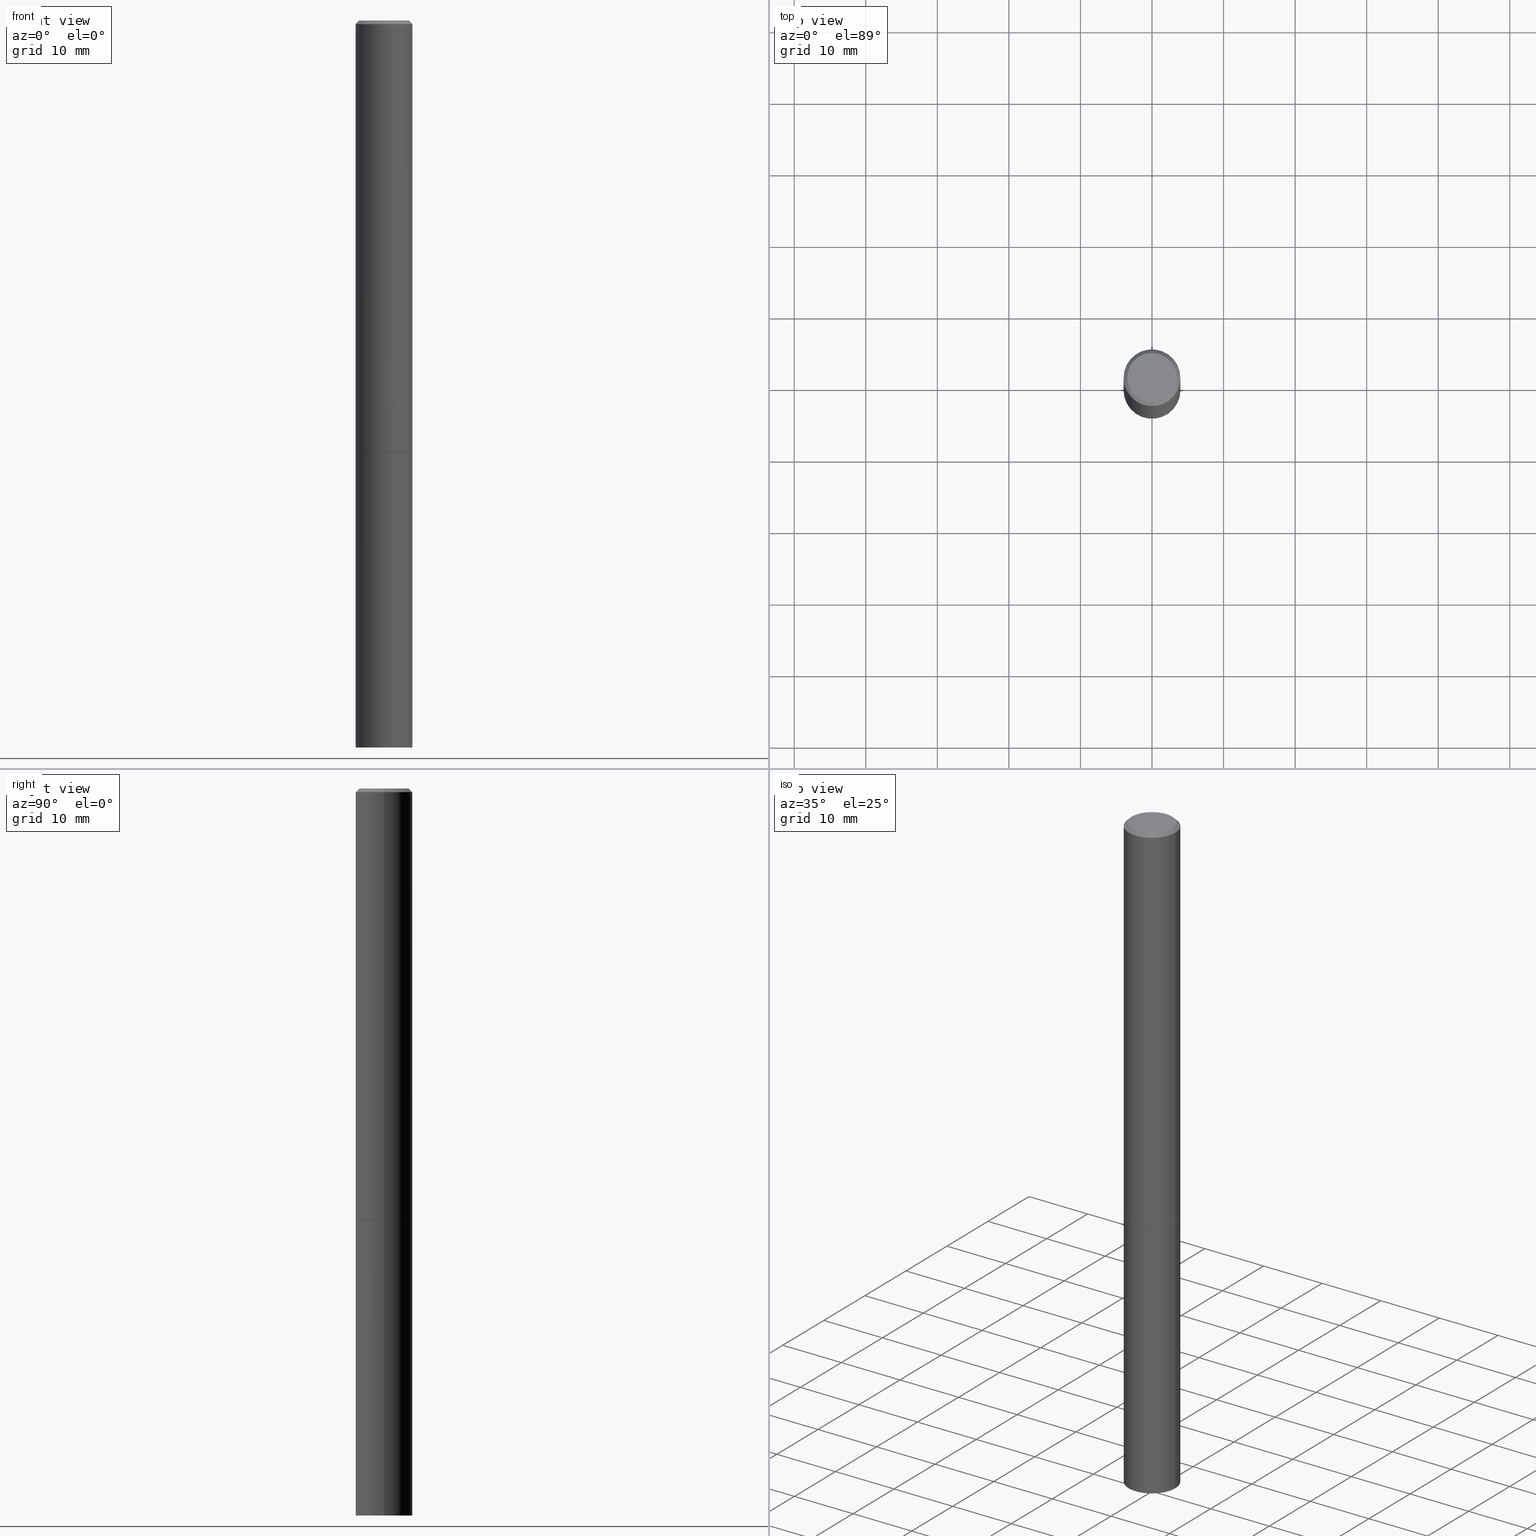
[diagram: canonical four-view strip — front | top / right | iso, engineering-drawing reading convention]
A machine part, canonical four-view strip (front | top / right | iso — engineering-drawing reading convention). The complete STEP part file that produces these views, byte-faithful:
ISO-10303-21;
HEADER;
FILE_DESCRIPTION (( 'STEP AP203' ),
    '1' );
FILE_NAME ('31951.STEP',
    '2024-02-27T14:20:24',
    ( '' ),
    ( '' ),
    'SwSTEP 2.0',
    'SolidWorks 2023',
    '' );
FILE_SCHEMA (( 'CONFIG_CONTROL_DESIGN' ));
ENDSEC;

DATA;
#1 = ORIENTED_EDGE ( 'NONE', *, *, #15, .T. ) ;
#2 = AXIS2_PLACEMENT_3D ( 'NONE', #83, #290, #30 ) ;
#3 = DIRECTION ( 'NONE',  ( -2.445468806185136597E-29, 3.491481338843145583E-15, 1.000000000000000000 ) ) ;
#4 = PRODUCT_DEFINITION_SHAPE ( 'NONE', 'NONE',  #153 ) ;
#5 = DIRECTION ( 'NONE',  ( -2.445468806185136877E-29, 3.491481338843145188E-15, 1.000000000000000000 ) ) ;
#6 = ORIENTED_EDGE ( 'NONE', *, *, #266, .F. ) ;
#7 =( LENGTH_UNIT ( ) NAMED_UNIT ( * ) SI_UNIT ( $, .METRE. ) );
#8 = VECTOR ( 'NONE', #287, 39.37007874015748854 ) ;
#9 = LINE ( 'NONE', #258, #233 ) ;
#10 = ADVANCED_FACE ( 'NONE', ( #84 ), #284, .T. ) ;
#11 = CARTESIAN_POINT ( 'NONE',  ( 9.781875224740546387E-29, -1.396592535537258233E-14, -4.000000000000000000 ) ) ;
#12 = VECTOR ( 'NONE', #268, 39.37007874015748143 ) ;
#13 = FACE_OUTER_BOUND ( 'NONE', #143, .T. ) ;
#14 = SECURITY_CLASSIFICATION ( '', '', #21 ) ;
#15 = EDGE_CURVE ( 'NONE', #195, #79, #173, .T. ) ;
#16 = CARTESIAN_POINT ( 'NONE',  ( 1.091087918388537155E-15, 0.1562499999999917011, -2.375000000000000444 ) ) ;
#17 = DIRECTION ( 'NONE',  ( 1.000000000000000000, -6.982962677686265922E-15, 4.876176775795935793E-29 ) ) ;
#18 = CARTESIAN_POINT ( 'NONE',  ( 0.000000000000000000, 0.000000000000000000, 0.000000000000000000 ) ) ;
#19 = CIRCLE ( 'NONE', #349, 0.1362499999999997324 ) ;
#20 = PERSON_AND_ORGANIZATION ( #115, #189 ) ;
#21 = SECURITY_CLASSIFICATION_LEVEL ( 'unclassified' ) ;
#22 = DIRECTION ( 'NONE',  ( 1.000000000000000000, -6.982962677686262766E-15, 0.000000000000000000 ) ) ;
#23 = ORIENTED_EDGE ( 'NONE', *, *, #207, .T. ) ;
#24 = CALENDAR_DATE ( 2024, 27, 2 ) ;
#25 = CARTESIAN_POINT ( 'NONE',  ( 4.890937612370281041E-31, -6.982962677686302702E-17, -0.02000000000000003511 ) ) ;
#26 = CIRCLE ( 'NONE', #172, 0.1562499999999997224 ) ;
#27 = FACE_OUTER_BOUND ( 'NONE', #81, .T. ) ;
#28 = PERSON_AND_ORGANIZATION ( #115, #189 ) ;
#29 = ORIENTED_EDGE ( 'NONE', *, *, #283, .F. ) ;
#30 = DIRECTION ( 'NONE',  ( 1.000000000000000000, 0.000000000000000000, 0.000000000000000000 ) ) ;
#31 = PRODUCT_RELATED_PRODUCT_CATEGORY ( 'detail', '', ( #338 ) ) ;
#32 = EDGE_LOOP ( 'NONE', ( #33, #1, #168, #365 ) ) ;
#33 = ORIENTED_EDGE ( 'NONE', *, *, #136, .F. ) ;
#34 = VECTOR ( 'NONE', #187, 39.37007874015748854 ) ;
#35 = DIRECTION ( 'NONE',  ( -2.445468806185136597E-29, 3.491481338843145583E-15, 1.000000000000000000 ) ) ;
#36 = ORIENTED_EDGE ( 'NONE', *, *, #131, .T. ) ;
#37 = EDGE_CURVE ( 'NONE', #230, #332, #26, .T. ) ;
#38 = CARTESIAN_POINT ( 'NONE',  ( -0.1552499999999999991, -7.183852128136692972E-15, -2.375000000000000000 ) ) ;
#39 = VERTEX_POINT ( 'NONE', #362 ) ;
#40 = CC_DESIGN_PERSON_AND_ORGANIZATION_ASSIGNMENT ( #245, #104, ( #14 ) ) ;
#41 = CYLINDRICAL_SURFACE ( 'NONE', #97, 0.1562499999999998612 ) ;
#42 = AXIS2_PLACEMENT_3D ( 'NONE', #309, #232, #231 ) ;
#43 = ADVANCED_FACE ( 'NONE', ( #27 ), #252, .F. ) ;
#44 = EDGE_CURVE ( 'NONE', #174, #195, #292, .T. ) ;
#45 = AXIS2_PLACEMENT_3D ( 'NONE', #46, #130, #98 ) ;
#46 = CARTESIAN_POINT ( 'NONE',  ( 4.890937612370281041E-31, -6.982962677686302702E-17, -0.02000000000000003511 ) ) ;
#47 = APPROVAL_DATE_TIME ( #239, #272 ) ;
#48 = CONICAL_SURFACE ( 'NONE', #317, 0.1562499999999997224, 0.7853981633974472798 ) ;
#49 = DATE_AND_TIME ( #66, #91 ) ;
#50 = ORIENTED_EDGE ( 'NONE', *, *, #37, .F. ) ;
#51 = EDGE_CURVE ( 'NONE', #54, #312, #293, .T. ) ;
#52 = CYLINDRICAL_SURFACE ( 'NONE', #249, 0.1562499999999998612 ) ;
#53 = AXIS2_PLACEMENT_3D ( 'NONE', #134, #3, #86 ) ;
#54 = VERTEX_POINT ( 'NONE', #209 ) ;
#55 = AXIS2_PLACEMENT_3D ( 'NONE', #122, #320, #353 ) ;
#56 = EDGE_LOOP ( 'NONE', ( #253, #257 ) ) ;
#57 = PERSON_AND_ORGANIZATION ( #115, #189 ) ;
#58 = ORIENTED_EDGE ( 'NONE', *, *, #236, .F. ) ;
#59 = DIRECTION ( 'NONE',  ( 1.000000000000000000, -6.982962677686268288E-15, 0.000000000000000000 ) ) ;
#60 = ORIENTED_EDGE ( 'NONE', *, *, #142, .F. ) ;
#61 = AXIS2_PLACEMENT_3D ( 'NONE', #250, #361, #111 ) ;
#62 = LOCAL_TIME ( 9, 20, 24.00000000000000000, #190 ) ;
#63 =( NAMED_UNIT ( * ) PLANE_ANGLE_UNIT ( ) SI_UNIT ( $, .RADIAN. ) );
#64 = FACE_OUTER_BOUND ( 'NONE', #56, .T. ) ;
#65 = PERSON_AND_ORGANIZATION ( #115, #189 ) ;
#66 = CALENDAR_DATE ( 2024, 27, 2 ) ;
#67 = DESIGN_CONTEXT ( 'detailed design', #127, 'design' ) ;
#68 = CARTESIAN_POINT ( 'NONE',  ( -0.1562499999999998612, 1.110223024625155554E-15, -7.685836078523284153E-30 ) ) ;
#69 = AXIS2_PLACEMENT_3D ( 'NONE', #11, #238, #210 ) ;
#70 = LOCAL_TIME ( 9, 20, 24.00000000000000000, #323 ) ;
#71 = APPROVAL_STATUS ( 'not_yet_approved' ) ;
#72 = DIRECTION ( 'NONE',  ( -2.445468806185136597E-29, 3.491481338843145583E-15, 1.000000000000000000 ) ) ;
#73 = DATE_AND_TIME ( #355, #70 ) ;
#74 = LOCAL_TIME ( 9, 20, 24.00000000000000000, #217 ) ;
#75 = PERSON_AND_ORGANIZATION ( #115, #189 ) ;
#76 = ADVANCED_FACE ( 'NONE', ( #184 ), #270, .T. ) ;
#77 = DIRECTION ( 'NONE',  ( -2.445468806185136597E-29, 3.491481338843145583E-15, 1.000000000000000000 ) ) ;
#78 = DIRECTION ( 'NONE',  ( -2.445468806185136877E-29, 3.491481338843145188E-15, 1.000000000000000000 ) ) ;
#79 = VERTEX_POINT ( 'NONE', #128 ) ;
#80 = DIRECTION ( 'NONE',  ( 1.000000000000000000, -6.982962677686266711E-15, 4.876176775795936353E-29 ) ) ;
#81 = EDGE_LOOP ( 'NONE', ( #304, #170 ) ) ;
#82 = VECTOR ( 'NONE', #78, 39.37007874015748143 ) ;
#83 = CARTESIAN_POINT ( 'NONE',  ( 0.000000000000000000, 0.000000000000000000, 0.000000000000000000 ) ) ;
#84 = FACE_OUTER_BOUND ( 'NONE', #117, .T. ) ;
#85 = DIRECTION ( 'NONE',  ( 1.000000000000000000, -6.982962677686262766E-15, 0.000000000000000000 ) ) ;
#86 = DIRECTION ( 'NONE',  ( 1.000000000000000000, -6.982962677686266711E-15, 4.876176775795936353E-29 ) ) ;
#87 = CYLINDRICAL_SURFACE ( 'NONE', #347, 0.1562500000000000000 ) ;
#88 = DIRECTION ( 'NONE',  ( -1.000000000000000000, 6.982962677686265922E-15, -4.876176775795935793E-29 ) ) ;
#89 = CARTESIAN_POINT ( 'NONE',  ( 5.805542945883513814E-29, -8.288776698413627111E-15, -2.373999999999999666 ) ) ;
#90 = UNCERTAINTY_MEASURE_WITH_UNIT (LENGTH_MEASURE( 1.000000000000000082E-05 ), #126, 'distance_accuracy_value', 'NONE');
#91 = LOCAL_TIME ( 9, 20, 24.00000000000000000, #271 ) ;
#92 = DIRECTION ( 'NONE',  ( 2.438088387897960049E-29, -3.491481338843145188E-15, -1.000000000000000000 ) ) ;
#93 = CARTESIAN_POINT ( 'NONE',  ( 0.1562500000000000000, -1.091087918388479174E-15, 7.619026212181150377E-30 ) ) ;
#94 = ADVANCED_FACE ( 'NONE', ( #64 ), #212, .F. ) ;
#95 = DIRECTION ( 'NONE',  ( -2.445468806185136877E-29, 3.491481338843145188E-15, 1.000000000000000000 ) ) ;
#96 = CIRCLE ( 'NONE', #307, 0.1552499999999999991 ) ;
#97 = AXIS2_PLACEMENT_3D ( 'NONE', #229, #339, #288 ) ;
#98 = DIRECTION ( 'NONE',  ( 1.000000000000000000, -6.982962677686267499E-15, 0.000000000000000000 ) ) ;
#99 = ADVANCED_FACE ( 'NONE', ( #13 ), #198, .T. ) ;
#100 = CARTESIAN_POINT ( 'NONE',  ( 0.1552499999999999991, -9.376373135463264066E-15, -2.375000000000000000 ) ) ;
#101 = APPROVAL ( #71, 'UNSPECIFIED' ) ;
#102 = PERSON_AND_ORGANIZATION_ROLE ( 'creator' ) ;
#103 = CARTESIAN_POINT ( 'NONE',  ( -0.1362499999999997324, 9.863434782231830429E-16, -6.775751096333125871E-30 ) ) ;
#104 = PERSON_AND_ORGANIZATION_ROLE ( 'classification_officer' ) ;
#105 = LINE ( 'NONE', #242, #335 ) ;
#106 = AXIS2_PLACEMENT_3D ( 'NONE', #295, #72, #350 ) ;
#107 = CIRCLE ( 'NONE', #45, 0.1562499999999997224 ) ;
#108 = DIRECTION ( 'NONE',  ( -2.445468806185136597E-29, 3.491481338843145583E-15, 1.000000000000000000 ) ) ;
#109 = PERSON_AND_ORGANIZATION ( #115, #189 ) ;
#110 = MANIFOLD_SOLID_BREP ( 'Body-Move/Copy2[2]', #346 ) ;
#111 = DIRECTION ( 'NONE',  ( -1.000000000000000000, 6.982962677686267499E-15, 0.000000000000000000 ) ) ;
#112 = ORIENTED_EDGE ( 'NONE', *, *, #51, .T. ) ;
#113 = ORIENTED_EDGE ( 'NONE', *, *, #315, .T. ) ;
#114 = DIRECTION ( 'NONE',  ( -2.445468806185136597E-29, 3.491481338843145583E-15, 1.000000000000000000 ) ) ;
#115 = PERSON ( 'UNSPECIFIED', 'UNSPECIFIED', 'UNSPECIFIED', ('UNSPECIFIED'), ('UNSPECIFIED'), ('UNSPECIFIED') ) ;
#116 = EDGE_LOOP ( 'NONE', ( #202, #205, #177, #6 ) ) ;
#117 = EDGE_LOOP ( 'NONE', ( #263, #341, #60, #282 ) ) ;
#118 = EDGE_CURVE ( 'NONE', #54, #308, #313, .T. ) ;
#119 = APPROVAL_ROLE ( '' ) ;
#120 = ORIENTED_EDGE ( 'NONE', *, *, #352, .F. ) ;
#121 = FACE_OUTER_BOUND ( 'NONE', #311, .T. ) ;
#122 = CARTESIAN_POINT ( 'NONE',  ( 5.807988414689699417E-29, -8.292268179752470118E-15, -2.375000000000000000 ) ) ;
#123 = APPLICATION_CONTEXT ( 'configuration controlled 3d designs of mechanical parts and assemblies' ) ;
#124 =( NAMED_UNIT ( * ) SI_UNIT ( $, .STERADIAN. ) SOLID_ANGLE_UNIT ( ) );
#125 = EDGE_LOOP ( 'NONE', ( #113, #225, #50, #120 ) ) ;
#126 =( CONVERSION_BASED_UNIT ( 'INCH', #342 ) LENGTH_UNIT ( ) NAMED_UNIT ( #340 ) );
#127 = APPLICATION_CONTEXT ( 'configuration controlled 3d designs of mechanical parts and assemblies' ) ;
#128 = CARTESIAN_POINT ( 'NONE',  ( 0.1562500000000000000, -9.379864616802105495E-15, -2.373999999999999666 ) ) ;
#129 = ADVANCED_BREP_SHAPE_REPRESENTATION ( '31951', ( #227, #110, #2 ), #321 ) ;
#130 = DIRECTION ( 'NONE',  ( -2.445468806185136597E-29, 3.491481338843145583E-15, 1.000000000000000000 ) ) ;
#131 = EDGE_CURVE ( 'NONE', #174, #330, #96, .T. ) ;
#132 = CARTESIAN_POINT ( 'NONE',  ( -0.1562500000000000000, -3.069080137970085114E-15, -2.373999999999999666 ) ) ;
#133 = DIRECTION ( 'NONE',  ( -0.7071067811865467956, 2.468850131082249172E-15, -0.7071067811865482389 ) ) ;
#134 = CARTESIAN_POINT ( 'NONE',  ( 0.000000000000000000, 0.000000000000000000, 0.000000000000000000 ) ) ;
#135 = DATE_AND_TIME ( #24, #62 ) ;
#136 = EDGE_CURVE ( 'NONE', #195, #332, #240, .T. ) ;
#137 = FACE_OUTER_BOUND ( 'NONE', #116, .T. ) ;
#138 = DIRECTION ( 'NONE',  ( 1.000000000000000000, -6.982962677686267499E-15, 0.000000000000000000 ) ) ;
#139 = DIRECTION ( 'NONE',  ( -2.445468806185136597E-29, 3.491481338843145583E-15, 1.000000000000000000 ) ) ;
#140 = ORIENTED_EDGE ( 'NONE', *, *, #211, .T. ) ;
#141 = MECHANICAL_CONTEXT ( 'NONE', #123, 'mechanical' ) ;
#142 = EDGE_CURVE ( 'NONE', #312, #39, #151, .T. ) ;
#143 = EDGE_LOOP ( 'NONE', ( #200, #36, #23, #234 ) ) ;
#144 = APPLICATION_PROTOCOL_DEFINITION ( 'international standard', 'config_control_design', 1994, #123 ) ;
#145 = ORIENTED_EDGE ( 'NONE', *, *, #167, .T. ) ;
#146 = CONICAL_SURFACE ( 'NONE', #199, 0.1552499999999999991, 0.7853981633974141952 ) ;
#147 = CARTESIAN_POINT ( 'NONE',  ( 0.000000000000000000, 0.000000000000000000, 0.000000000000000000 ) ) ;
#148 = DIRECTION ( 'NONE',  ( 2.438088387897960049E-29, -3.491481338843145188E-15, -1.000000000000000000 ) ) ;
#149 = FACE_OUTER_BOUND ( 'NONE', #226, .T. ) ;
#150 = CC_DESIGN_DATE_AND_TIME_ASSIGNMENT ( #159, #326, ( #153 ) ) ;
#151 = CIRCLE ( 'NONE', #55, 0.1562500000000000000 ) ;
#152 = CIRCLE ( 'NONE', #183, 0.1562500000000000000 ) ;
#153 = PRODUCT_DEFINITION ( 'UNKNOWN', '', #286, #67 ) ;
#154 = CARTESIAN_POINT ( 'NONE',  ( -0.1552499999999999991, -7.189150582484915374E-15, -2.375000000000000000 ) ) ;
#155 = CONICAL_SURFACE ( 'NONE', #61, 0.1562499999999997224, 0.7853981633974472798 ) ;
#156 = SHAPE_DEFINITION_REPRESENTATION ( #4, #129 ) ;
#157 = CIRCLE ( 'NONE', #256, 0.1552499999999999991 ) ;
#158 = DIRECTION ( 'NONE',  ( -2.445468806185136597E-29, 3.491481338843145583E-15, 1.000000000000000000 ) ) ;
#159 = DATE_AND_TIME ( #163, #74 ) ;
#160 = FACE_OUTER_BOUND ( 'NONE', #247, .T. ) ;
#161 = CARTESIAN_POINT ( 'NONE',  ( 9.781875224740546387E-29, -1.396592535537258233E-14, -4.000000000000000000 ) ) ;
#162 = ORIENTED_EDGE ( 'NONE', *, *, #276, .T. ) ;
#163 = CALENDAR_DATE ( 2024, 27, 2 ) ;
#164 = CARTESIAN_POINT ( 'NONE',  ( 5.807988414689699417E-29, -8.292268179752470118E-15, -2.375000000000000000 ) ) ;
#165 = VECTOR ( 'NONE', #95, 39.37007874015748143 ) ;
#166 = ORIENTED_EDGE ( 'NONE', *, *, #315, .F. ) ;
#167 = EDGE_CURVE ( 'NONE', #332, #230, #107, .T. ) ;
#168 = ORIENTED_EDGE ( 'NONE', *, *, #352, .T. ) ;
#169 = APPROVAL_STATUS ( 'not_yet_approved' ) ;
#170 = ORIENTED_EDGE ( 'NONE', *, *, #131, .F. ) ;
#171 = CARTESIAN_POINT ( 'NONE',  ( 0.1362499999999997324, -1.038262645562516152E-15, 6.957025900226682464E-30 ) ) ;
#172 = AXIS2_PLACEMENT_3D ( 'NONE', #328, #77, #138 ) ;
#173 = CIRCLE ( 'NONE', #181, 0.1562500000000000000 ) ;
#174 = VERTEX_POINT ( 'NONE', #38 ) ;
#175 = CC_DESIGN_APPROVAL ( #101, ( #286 ) ) ;
#176 = ORIENTED_EDGE ( 'NONE', *, *, #297, .F. ) ;
#177 = ORIENTED_EDGE ( 'NONE', *, *, #37, .T. ) ;
#178 = PERSON_AND_ORGANIZATION_ROLE ( 'design_owner' ) ;
#179 = AXIS2_PLACEMENT_3D ( 'NONE', #89, #235, #85 ) ;
#180 = EDGE_CURVE ( 'NONE', #330, #174, #157, .T. ) ;
#181 = AXIS2_PLACEMENT_3D ( 'NONE', #359, #108, #221 ) ;
#182 = EDGE_CURVE ( 'NONE', #308, #54, #152, .T. ) ;
#183 = AXIS2_PLACEMENT_3D ( 'NONE', #161, #158, #298 ) ;
#184 = FACE_OUTER_BOUND ( 'NONE', #281, .T. ) ;
#185 = PERSON_AND_ORGANIZATION ( #115, #189 ) ;
#186 = LINE ( 'NONE', #100, #34 ) ;
#187 = DIRECTION ( 'NONE',  ( 0.7071067811865232589, -2.468850131082003836E-15, 0.7071067811865715536 ) ) ;
#188 = APPROVAL_DATE_TIME ( #73, #101 ) ;
#189 = ORGANIZATION ( 'UNSPECIFIED', 'UNSPECIFIED', '' ) ;
#190 = COORDINATED_UNIVERSAL_TIME_OFFSET ( 5, 0, .BEHIND. ) ;
#191 = LINE ( 'NONE', #303, #82 ) ;
#192 = ORIENTED_EDGE ( 'NONE', *, *, #182, .F. ) ;
#193 = CALENDAR_DATE ( 2024, 27, 2 ) ;
#194 = CARTESIAN_POINT ( 'NONE',  ( -0.1562500000000000000, -1.001887374293736968E-14, -4.000000000000000000 ) ) ;
#195 = VERTEX_POINT ( 'NONE', #132 ) ;
#196 = ADVANCED_FACE ( 'NONE', ( #160 ), #48, .T. ) ;
#197 = FACE_OUTER_BOUND ( 'NONE', #32, .T. ) ;
#198 = CONICAL_SURFACE ( 'NONE', #106, 0.1552499999999999991, 0.7853981633974141952 ) ;
#199 = AXIS2_PLACEMENT_3D ( 'NONE', #264, #35, #59 ) ;
#200 = ORIENTED_EDGE ( 'NONE', *, *, #44, .F. ) ;
#201 = PLANE ( 'NONE',  #42 ) ;
#202 = ORIENTED_EDGE ( 'NONE', *, *, #276, .F. ) ;
#203 = CARTESIAN_POINT ( 'NONE',  ( -0.1562499999999997224, 1.021258291611614298E-15, -0.02000000000000003511 ) ) ;
#204 = ORIENTED_EDGE ( 'NONE', *, *, #44, .T. ) ;
#205 = ORIENTED_EDGE ( 'NONE', *, *, #283, .T. ) ;
#206 = DIRECTION ( 'NONE',  ( -2.445468806185136597E-29, 3.491481338843145583E-15, 1.000000000000000000 ) ) ;
#207 = EDGE_CURVE ( 'NONE', #330, #79, #186, .T. ) ;
#208 = APPROVAL_PERSON_ORGANIZATION ( #57, #337, #119 ) ;
#209 = CARTESIAN_POINT ( 'NONE',  ( 0.1562500000000000000, -1.505701327376106229E-14, -4.000000000000000000 ) ) ;
#210 = DIRECTION ( 'NONE',  ( 1.000000000000000000, -6.982962677686262766E-15, 0.000000000000000000 ) ) ;
#211 = EDGE_CURVE ( 'NONE', #254, #336, #19, .T. ) ;
#212 = PLANE ( 'NONE',  #265 ) ;
#213 = DIRECTION ( 'NONE',  ( -2.445468806185136597E-29, 3.491481338843145583E-15, 1.000000000000000000 ) ) ;
#214 = APPROVAL_DATE_TIME ( #49, #337 ) ;
#215 = CC_DESIGN_PERSON_AND_ORGANIZATION_ASSIGNMENT ( #65, #178, ( #338 ) ) ;
#216 = AXIS2_PLACEMENT_3D ( 'NONE', #262, #148, #318 ) ;
#217 = COORDINATED_UNIVERSAL_TIME_OFFSET ( 5, 0, .BEHIND. ) ;
#218 = LOCAL_TIME ( 9, 20, 24.00000000000000000, #296 ) ;
#219 = APPROVAL_PERSON_ORGANIZATION ( #28, #101, #273 ) ;
#220 = DIRECTION ( 'NONE',  ( 0.7071067811865467956, -7.319954787623254468E-15, -0.7071067811865482389 ) ) ;
#221 = DIRECTION ( 'NONE',  ( 1.000000000000000000, -6.982962677686262766E-15, 0.000000000000000000 ) ) ;
#222 = APPROVAL_STATUS ( 'not_yet_approved' ) ;
#223 = LINE ( 'NONE', #324, #325 ) ;
#224 = ORIENTED_EDGE ( 'NONE', *, *, #266, .T. ) ;
#225 = ORIENTED_EDGE ( 'NONE', *, *, #136, .T. ) ;
#226 = EDGE_LOOP ( 'NONE', ( #277, #204, #166, #363 ) ) ;
#227 = MANIFOLD_SOLID_BREP ( 'Body-Move/Copy2[1]', #333 ) ;
#228 = ORIENTED_EDGE ( 'NONE', *, *, #118, .F. ) ;
#229 = CARTESIAN_POINT ( 'NONE',  ( 0.000000000000000000, 0.000000000000000000, 0.000000000000000000 ) ) ;
#230 = VERTEX_POINT ( 'NONE', #299 ) ;
#231 = DIRECTION ( 'NONE',  ( -1.000000000000000000, 6.982962677686265922E-15, -4.876176775795935793E-29 ) ) ;
#232 = DIRECTION ( 'NONE',  ( 2.438088387897960049E-29, -3.491481338843145188E-15, -1.000000000000000000 ) ) ;
#233 = VECTOR ( 'NONE', #5, 39.37007874015748143 ) ;
#234 = ORIENTED_EDGE ( 'NONE', *, *, #15, .F. ) ;
#235 = DIRECTION ( 'NONE',  ( -2.445468806185136597E-29, 3.491481338843145583E-15, 1.000000000000000000 ) ) ;
#236 = EDGE_CURVE ( 'NONE', #39, #312, #354, .T. ) ;
#237 = AXIS2_PLACEMENT_3D ( 'NONE', #164, #139, #22 ) ;
#238 = DIRECTION ( 'NONE',  ( -2.445468806185136597E-29, 3.491481338843145583E-15, 1.000000000000000000 ) ) ;
#239 = DATE_AND_TIME ( #193, #218 ) ;
#240 = LINE ( 'NONE', #68, #165 ) ;
#241 = CIRCLE ( 'NONE', #179, 0.1562500000000000000 ) ;
#242 = CARTESIAN_POINT ( 'NONE',  ( 0.1562499999999997224, -1.141782438928662935E-15, -0.02000000000000003511 ) ) ;
#243 = ADVANCED_FACE ( 'NONE', ( #137 ), #155, .T. ) ;
#244 = DIRECTION ( 'NONE',  ( 2.445468806185136597E-29, -3.491481338843145583E-15, -1.000000000000000000 ) ) ;
#245 = PERSON_AND_ORGANIZATION ( #115, #189 ) ;
#246 = DIRECTION ( 'NONE',  ( -2.445468806185136597E-29, 3.491481338843145583E-15, 1.000000000000000000 ) ) ;
#247 = EDGE_LOOP ( 'NONE', ( #29, #306, #224, #145 ) ) ;
#248 = DATE_TIME_ROLE ( 'classification_date' ) ;
#249 = AXIS2_PLACEMENT_3D ( 'NONE', #274, #114, #331 ) ;
#250 = CARTESIAN_POINT ( 'NONE',  ( 4.890937612370281041E-31, -6.982962677686302702E-17, -0.02000000000000003511 ) ) ;
#251 = ADVANCED_FACE ( 'NONE', ( #327 ), #52, .T. ) ;
#252 = PLANE ( 'NONE',  #278 ) ;
#253 = ORIENTED_EDGE ( 'NONE', *, *, #142, .T. ) ;
#254 = VERTEX_POINT ( 'NONE', #103 ) ;
#255 = APPLICATION_PROTOCOL_DEFINITION ( 'international standard', 'config_control_design', 1994, #127 ) ;
#256 = AXIS2_PLACEMENT_3D ( 'NONE', #322, #344, #302 ) ;
#257 = ORIENTED_EDGE ( 'NONE', *, *, #236, .T. ) ;
#258 = CARTESIAN_POINT ( 'NONE',  ( 0.1562499999999998612, -1.091087918388478187E-15, 7.619026212181143371E-30 ) ) ;
#259 = DIRECTION ( 'NONE',  ( -2.445468806185136597E-29, 3.491481338843145583E-15, 1.000000000000000000 ) ) ;
#260 = ORIENTED_EDGE ( 'NONE', *, *, #182, .T. ) ;
#261 = CARTESIAN_POINT ( 'NONE',  ( 0.1562500000000000000, -9.383356098140948502E-15, -2.375000000000000000 ) ) ;
#262 = CARTESIAN_POINT ( 'NONE',  ( 1.091087918388576795E-15, 0.1562499999999860389, -4.000000000000000888 ) ) ;
#263 = ORIENTED_EDGE ( 'NONE', *, *, #118, .T. ) ;
#264 = CARTESIAN_POINT ( 'NONE',  ( 5.807988414689699417E-29, -8.292268179752470118E-15, -2.375000000000000000 ) ) ;
#265 = AXIS2_PLACEMENT_3D ( 'NONE', #16, #92, #88 ) ;
#266 = EDGE_CURVE ( 'NONE', #254, #332, #223, .T. ) ;
#267 = CC_DESIGN_PERSON_AND_ORGANIZATION_ASSIGNMENT ( #185, #275, ( #286 ) ) ;
#268 = DIRECTION ( 'NONE',  ( -2.445468806185136877E-29, 3.491481338843145188E-15, 1.000000000000000000 ) ) ;
#269 = CC_DESIGN_APPROVAL ( #272, ( #14 ) ) ;
#270 = PLANE ( 'NONE',  #216 ) ;
#271 = COORDINATED_UNIVERSAL_TIME_OFFSET ( 5, 0, .BEHIND. ) ;
#272 = APPROVAL ( #222, 'UNSPECIFIED' ) ;
#273 = APPROVAL_ROLE ( '' ) ;
#274 = CARTESIAN_POINT ( 'NONE',  ( 0.000000000000000000, 0.000000000000000000, 0.000000000000000000 ) ) ;
#275 = PERSON_AND_ORGANIZATION_ROLE ( 'creator' ) ;
#276 = EDGE_CURVE ( 'NONE', #336, #254, #291, .T. ) ;
#277 = ORIENTED_EDGE ( 'NONE', *, *, #180, .T. ) ;
#278 = AXIS2_PLACEMENT_3D ( 'NONE', #289, #314, #17 ) ;
#279 = PERSON_AND_ORGANIZATION_ROLE ( 'design_supplier' ) ;
#280 = CC_DESIGN_SECURITY_CLASSIFICATION ( #14, ( #286 ) ) ;
#281 = EDGE_LOOP ( 'NONE', ( #228, #192 ) ) ;
#282 = ORIENTED_EDGE ( 'NONE', *, *, #51, .F. ) ;
#283 = EDGE_CURVE ( 'NONE', #336, #230, #105, .T. ) ;
#284 = CYLINDRICAL_SURFACE ( 'NONE', #53, 0.1562500000000000000 ) ;
#285 = FACE_OUTER_BOUND ( 'NONE', #345, .T. ) ;
#286 = PRODUCT_DEFINITION_FORMATION_WITH_SPECIFIED_SOURCE ( 'ANY', '', #338, .NOT_KNOWN. ) ;
#287 = DIRECTION ( 'NONE',  ( -0.7071067811865232589, 7.493145998870265808E-15, 0.7071067811865715536 ) ) ;
#288 = DIRECTION ( 'NONE',  ( 1.000000000000000000, -6.982962677686266711E-15, 4.876176775795936353E-29 ) ) ;
#289 = CARTESIAN_POINT ( 'NONE',  ( 5.807988414689699417E-29, -8.292268179752470118E-15, -2.375000000000000000 ) ) ;
#290 = DIRECTION ( 'NONE',  ( 0.000000000000000000, 0.000000000000000000, 1.000000000000000000 ) ) ;
#291 = CIRCLE ( 'NONE', #294, 0.1362499999999997324 ) ;
#292 = LINE ( 'NONE', #154, #8 ) ;
#293 = LINE ( 'NONE', #93, #12 ) ;
#294 = AXIS2_PLACEMENT_3D ( 'NONE', #18, #246, #358 ) ;
#295 = CARTESIAN_POINT ( 'NONE',  ( 5.807988414689699417E-29, -8.292268179752470118E-15, -2.375000000000000000 ) ) ;
#296 = COORDINATED_UNIVERSAL_TIME_OFFSET ( 5, 0, .BEHIND. ) ;
#297 = EDGE_CURVE ( 'NONE', #308, #39, #191, .T. ) ;
#298 = DIRECTION ( 'NONE',  ( 1.000000000000000000, -6.982962677686262766E-15, 0.000000000000000000 ) ) ;
#299 = CARTESIAN_POINT ( 'NONE',  ( 0.1562499999999997224, -1.141782438928662935E-15, -0.02000000000000003511 ) ) ;
#300 = CC_DESIGN_PERSON_AND_ORGANIZATION_ASSIGNMENT ( #20, #102, ( #153 ) ) ;
#301 = CC_DESIGN_APPROVAL ( #337, ( #153 ) ) ;
#302 = DIRECTION ( 'NONE',  ( 1.000000000000000000, -6.982962677686268288E-15, 0.000000000000000000 ) ) ;
#303 = CARTESIAN_POINT ( 'NONE',  ( -0.1562500000000000000, 1.110223024625156540E-15, -7.685836078523291160E-30 ) ) ;
#304 = ORIENTED_EDGE ( 'NONE', *, *, #180, .F. ) ;
#305 = DIRECTION ( 'NONE',  ( 1.000000000000000000, -6.982962677686266711E-15, 4.876176775795936353E-29 ) ) ;
#306 = ORIENTED_EDGE ( 'NONE', *, *, #211, .F. ) ;
#307 = AXIS2_PLACEMENT_3D ( 'NONE', #351, #259, #319 ) ;
#308 = VERTEX_POINT ( 'NONE', #194 ) ;
#309 = CARTESIAN_POINT ( 'NONE',  ( 9.514286648347519855E-16, 0.1362499999999997324, -4.757143324173776691E-16 ) ) ;
#310 = ADVANCED_FACE ( 'NONE', ( #197 ), #41, .T. ) ;
#311 = EDGE_LOOP ( 'NONE', ( #140, #162 ) ) ;
#312 = VERTEX_POINT ( 'NONE', #261 ) ;
#313 = CIRCLE ( 'NONE', #69, 0.1562500000000000000 ) ;
#314 = DIRECTION ( 'NONE',  ( -2.438088387897960049E-29, 3.491481338843145188E-15, 1.000000000000000000 ) ) ;
#315 = EDGE_CURVE ( 'NONE', #79, #195, #241, .T. ) ;
#316 = CC_DESIGN_DATE_AND_TIME_ASSIGNMENT ( #135, #248, ( #14 ) ) ;
#317 = AXIS2_PLACEMENT_3D ( 'NONE', #25, #244, #356 ) ;
#318 = DIRECTION ( 'NONE',  ( -1.000000000000000000, 6.982962677686265922E-15, -4.876176775795935793E-29 ) ) ;
#319 = DIRECTION ( 'NONE',  ( 1.000000000000000000, -6.982962677686268288E-15, 0.000000000000000000 ) ) ;
#320 = DIRECTION ( 'NONE',  ( -2.445468806185136597E-29, 3.491481338843145583E-15, 1.000000000000000000 ) ) ;
#321 =( GEOMETRIC_REPRESENTATION_CONTEXT ( 3 ) GLOBAL_UNCERTAINTY_ASSIGNED_CONTEXT ( ( #90 ) ) GLOBAL_UNIT_ASSIGNED_CONTEXT ( ( #126, #63, #124 ) ) REPRESENTATION_CONTEXT ( 'NONE', 'WORKASPACE' ) );
#322 = CARTESIAN_POINT ( 'NONE',  ( 5.807988414689699417E-29, -8.292268179752470118E-15, -2.375000000000000000 ) ) ;
#323 = COORDINATED_UNIVERSAL_TIME_OFFSET ( 5, 0, .BEHIND. ) ;
#324 = CARTESIAN_POINT ( 'NONE',  ( -0.1562499999999997224, 1.021258291611614298E-15, -0.02000000000000003511 ) ) ;
#325 = VECTOR ( 'NONE', #133, 39.37007874015748143 ) ;
#326 = DATE_TIME_ROLE ( 'creation_date' ) ;
#327 = FACE_OUTER_BOUND ( 'NONE', #125, .T. ) ;
#328 = CARTESIAN_POINT ( 'NONE',  ( 4.890937612370281041E-31, -6.982962677686302702E-17, -0.02000000000000003511 ) ) ;
#329 = APPROVAL_ROLE ( '' ) ;
#330 = VERTEX_POINT ( 'NONE', #366 ) ;
#331 = DIRECTION ( 'NONE',  ( 1.000000000000000000, -6.982962677686266711E-15, 4.876176775795936353E-29 ) ) ;
#332 = VERTEX_POINT ( 'NONE', #203 ) ;
#333 = CLOSED_SHELL ( 'NONE', ( #10, #76, #94, #343 ) ) ;
#334 = ADVANCED_FACE ( 'NONE', ( #149 ), #146, .T. ) ;
#335 = VECTOR ( 'NONE', #220, 39.37007874015748143 ) ;
#336 = VERTEX_POINT ( 'NONE', #171 ) ;
#337 = APPROVAL ( #169, 'UNSPECIFIED' ) ;
#338 = PRODUCT ( '31951', '31951', '', ( #141 ) ) ;
#339 = DIRECTION ( 'NONE',  ( -2.445468806185136597E-29, 3.491481338843145583E-15, 1.000000000000000000 ) ) ;
#340 = DIMENSIONAL_EXPONENTS ( 1.000000000000000000, 0.000000000000000000, 0.000000000000000000, 0.000000000000000000, 0.000000000000000000, 0.000000000000000000, 0.000000000000000000 ) ;
#341 = ORIENTED_EDGE ( 'NONE', *, *, #297, .T. ) ;
#342 = LENGTH_MEASURE_WITH_UNIT ( LENGTH_MEASURE( 0.02539999999999999897 ), #7 );
#343 = ADVANCED_FACE ( 'NONE', ( #285 ), #87, .T. ) ;
#344 = DIRECTION ( 'NONE',  ( -2.445468806185136597E-29, 3.491481338843145583E-15, 1.000000000000000000 ) ) ;
#345 = EDGE_LOOP ( 'NONE', ( #176, #260, #112, #58 ) ) ;
#346 = CLOSED_SHELL ( 'NONE', ( #334, #251, #243, #196, #310, #99, #43, #364 ) ) ;
#347 = AXIS2_PLACEMENT_3D ( 'NONE', #147, #206, #80 ) ;
#348 = CC_DESIGN_PERSON_AND_ORGANIZATION_ASSIGNMENT ( #75, #279, ( #286 ) ) ;
#349 = AXIS2_PLACEMENT_3D ( 'NONE', #357, #213, #305 ) ;
#350 = DIRECTION ( 'NONE',  ( 1.000000000000000000, -6.982962677686268288E-15, 0.000000000000000000 ) ) ;
#351 = CARTESIAN_POINT ( 'NONE',  ( 5.807988414689699417E-29, -8.292268179752470118E-15, -2.375000000000000000 ) ) ;
#352 = EDGE_CURVE ( 'NONE', #79, #230, #9, .T. ) ;
#353 = DIRECTION ( 'NONE',  ( 1.000000000000000000, -6.982962677686262766E-15, 0.000000000000000000 ) ) ;
#354 = CIRCLE ( 'NONE', #237, 0.1562500000000000000 ) ;
#355 = CALENDAR_DATE ( 2024, 27, 2 ) ;
#356 = DIRECTION ( 'NONE',  ( -1.000000000000000000, 6.982962677686267499E-15, 0.000000000000000000 ) ) ;
#357 = CARTESIAN_POINT ( 'NONE',  ( 0.000000000000000000, 0.000000000000000000, 0.000000000000000000 ) ) ;
#358 = DIRECTION ( 'NONE',  ( 1.000000000000000000, -6.982962677686266711E-15, 4.876176775795936353E-29 ) ) ;
#359 = CARTESIAN_POINT ( 'NONE',  ( 5.805542945883513814E-29, -8.288776698413627111E-15, -2.373999999999999666 ) ) ;
#360 = APPROVAL_PERSON_ORGANIZATION ( #109, #272, #329 ) ;
#361 = DIRECTION ( 'NONE',  ( 2.445468806185136597E-29, -3.491481338843145583E-15, -1.000000000000000000 ) ) ;
#362 = CARTESIAN_POINT ( 'NONE',  ( -0.1562500000000000000, -1.001887374293736968E-14, -2.375000000000000000 ) ) ;
#363 = ORIENTED_EDGE ( 'NONE', *, *, #207, .F. ) ;
#364 = ADVANCED_FACE ( 'NONE', ( #121 ), #201, .F. ) ;
#365 = ORIENTED_EDGE ( 'NONE', *, *, #167, .F. ) ;
#366 = CARTESIAN_POINT ( 'NONE',  ( 0.1552499999999999991, -9.376373135463264066E-15, -2.375000000000000000 ) ) ;
ENDSEC;
END-ISO-10303-21;
